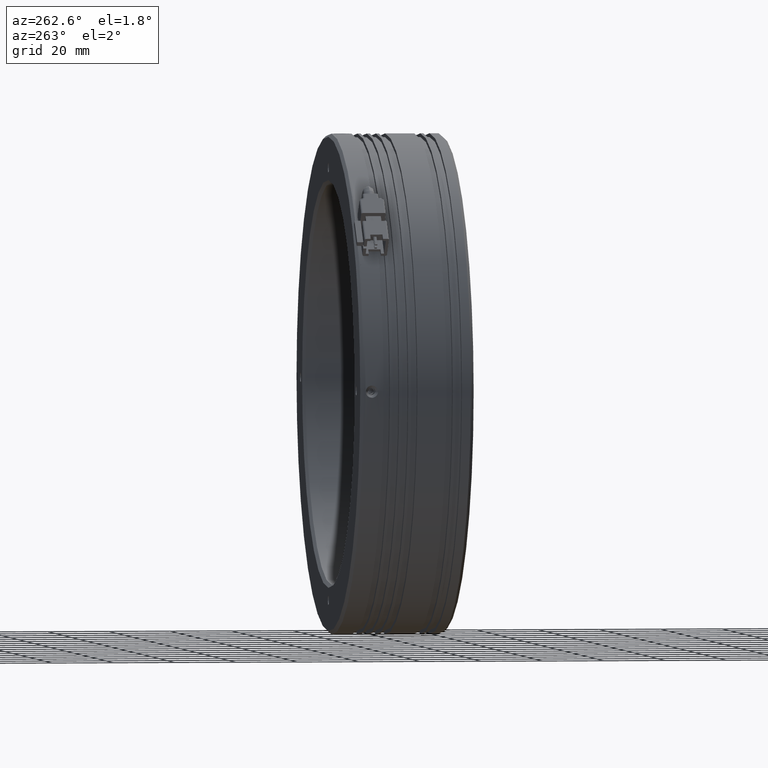
[diagram: clean part render]
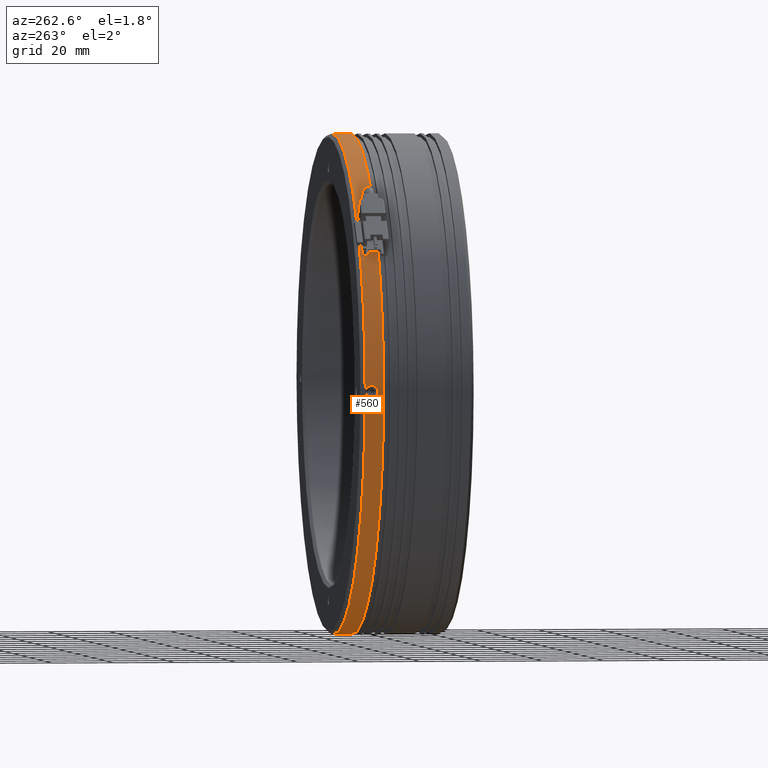
[diagram: same view with one face highlighted and labeled with its STEP entity id]
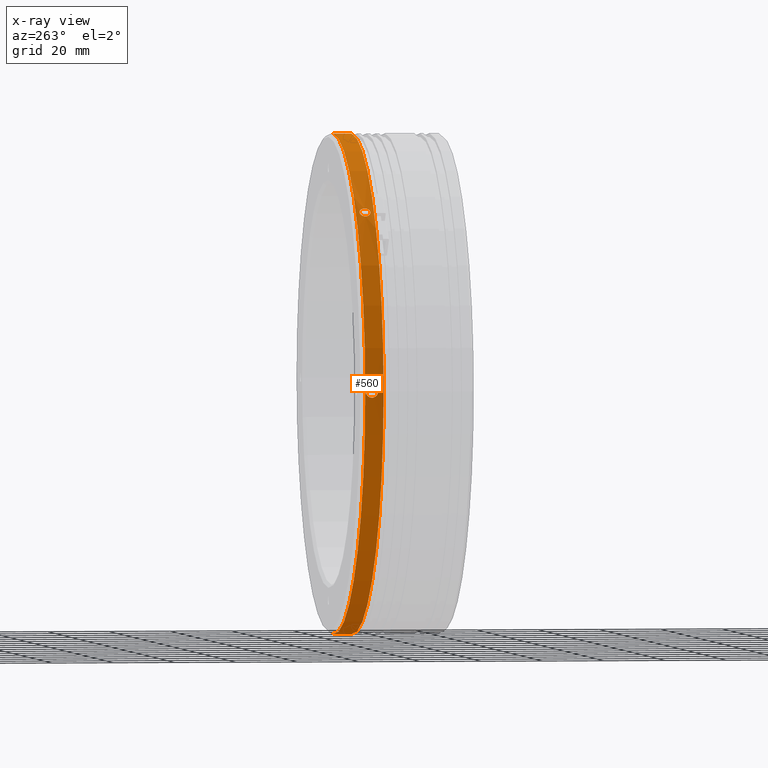
[diagram: x-ray of the same camera — body ghosted, the highlighted face saturated]
A machine part, auxiliary view. The second image highlights one B-rep face of the part: STEP entity #560.
The next image is the same camera in x-ray: the body ghosted, the highlighted face saturated — about 0% of this face is hidden behind the body in this view.
In plain terms, the highlighted cylindrical surface (partial cylindrical patch) has radius 81 mm, axis along (-0, -1, -0).
Its self-contained STEP definition (entity closure, byte-faithful):
#19 = CARTESIAN_POINT ( 'NONE',  ( -90.76091888166118300, 24.17111437184005900, -1.975896614773990000 ) ) ;
#30 = CARTESIAN_POINT ( 'NONE',  ( -9.785022266880036000, -37.73097191106735000, -81.00000000000000000 ) ) ;
#104 = CARTESIAN_POINT ( 'NONE',  ( -9.785022266880025300, -37.73097191106735000, 81.00000000000000000 ) ) ;
#113 = CARTESIAN_POINT ( 'NONE',  ( -9.785022266880036000, 26.37111437184006100, 0.0000000000000000000 ) ) ;
#185 = CARTESIAN_POINT ( 'NONE',  ( -11.76091888159829900, 24.03991468720128600, 80.97589661478173200 ) ) ;
#244 = CARTESIAN_POINT ( 'NONE',  ( -68.24613348243376300, 23.82403630910187400, 56.06513149427852500 ) ) ;
#267 = CARTESIAN_POINT ( 'NONE',  ( -11.69840905936837100, 23.65539804451717000, -80.97740162032246800 ) ) ;
#287 = CARTESIAN_POINT ( 'NONE',  ( -66.66168595529242700, 25.03225265402858900, 57.67197196597156500 ) ) ;
#344 = LINE ( 'NONE', #9531, #2720 ) ;
#365 = B_SPLINE_CURVE_WITH_KNOTS ( 'NONE', 3,
 ( #3219, #9268, #6249, #244, #7277, #1262, #8311, #2261, #9317, #3256, #10348, #4260, #11366, #5284, #12401, #6300, #287, #7319, #1311, #8354, #2300, #9361, #3308, #10383, #4296, #11420, #5327, #12440 ),
 .UNSPECIFIED., .F., .F.,
 ( 4, 2, 2, 2, 2, 2, 2, 2, 2, 2, 2, 2, 2, 4 ),
 ( 0.005470331731803198100, 0.005812227511376099100, 0.006154123290949001100, 0.006496019070521902100, 0.006837914850094803200, 0.007521706409240606200, 0.008205497968386408400, 0.008547393747959295500, 0.008889289527532182700, 0.009231185307105069900, 0.009573081086677955400, 0.009914976866250842600, 0.01025687264582372800, 0.01094066420496948700 ),
 .UNSPECIFIED. ) ;
#368 = CARTESIAN_POINT ( 'NONE',  ( -9.785022266880025300, -37.73097191106735000, 81.00000000000000000 ) ) ;
#439 = CARTESIAN_POINT ( 'NONE',  ( -11.76091888159797900, 24.17111437184005900, 80.97589661478252800 ) ) ;
#460 = FACE_BOUND ( 'NONE', #7204, .T. ) ;
#470 = CIRCLE ( 'NONE', #5397, 81.00000000000000000 ) ;
#491 = CARTESIAN_POINT ( 'NONE',  ( -11.69840905936836800, 24.68683069916289300, 80.97740162032246800 ) ) ;
#560 = ADVANCED_FACE ( 'NONE', ( #5475, #8832, #460 ), #5645, .T. ) ;
#645 = VERTEX_POINT ( 'NONE', #11926 ) ;
#646 = ORIENTED_EDGE ( 'NONE', *, *, #4763, .T. ) ;
#662 = CARTESIAN_POINT ( 'NONE',  ( -65.80986574210211900, 23.25550800685361700, 58.49971720937518400 ) ) ;
#676 = CARTESIAN_POINT ( 'NONE',  ( -90.76242500934590400, 24.68702278896634200, -1.913339547348345000 ) ) ;
#711 = CARTESIAN_POINT ( 'NONE',  ( -66.43467428322166800, 21.84184059962329600, 57.89526110767482700 ) ) ;
#721 = CARTESIAN_POINT ( 'NONE',  ( -90.78470429919205700, 26.15804090762368600, 0.2600949281028596100 ) ) ;
#751 = CARTESIAN_POINT ( 'NONE',  ( -68.12378270852100600, 22.49236556853445600, 56.19246436924800700 ) ) ;
#841 = CARTESIAN_POINT ( 'NONE',  ( -90.76091888166118300, 24.17111437184005900, -1.975896614773990000 ) ) ;
#948 = CARTESIAN_POINT ( 'NONE',  ( -90.76242500934590400, 23.65520595471377900, 1.913339547347780300 ) ) ;
#984 = CARTESIAN_POINT ( 'NONE',  ( -11.51378264215622800, 25.17373191523349600, -80.98160872535589800 ) ) ;
#999 = CARTESIAN_POINT ( 'NONE',  ( -90.78470429919205700, 22.18418783605645600, -0.2600949281034229400 ) ) ;
#1139 = DIRECTION ( 'NONE',  ( 0.0000000000000000000, 0.0000000000000000000, -1.000000000000000000 ) ) ;
#1163 = CARTESIAN_POINT ( 'NONE',  ( -10.30005943013607200, 22.23579664135820600, 80.99846256463132500 ) ) ;
#1175 = VERTEX_POINT ( 'NONE', #2579 ) ;
#1179 = ORIENTED_EDGE ( 'NONE', *, *, #13059, .T. ) ;
#1229 = CARTESIAN_POINT ( 'NONE',  ( -9.785022266880025300, 22.17111437190462900, 81.00000000000000000 ) ) ;
#1262 = CARTESIAN_POINT ( 'NONE',  ( -68.16198427486456500, 24.14707398670231300, 56.15275804229317900 ) ) ;
#1290 = CARTESIAN_POINT ( 'NONE',  ( -11.56274197615486600, 23.28854709550305200, -80.98050449408603400 ) ) ;
#1311 = CARTESIAN_POINT ( 'NONE',  ( -66.43740990886965400, 24.88994155732427100, 57.89227901624811800 ) ) ;
#1390 = VERTEX_POINT ( 'NONE', #1922 ) ;
#1493 = CARTESIAN_POINT ( 'NONE',  ( -11.56274197615484800, 25.05368164817696900, 80.98050449408602000 ) ) ;
#1579 = ORIENTED_EDGE ( 'NONE', *, *, #13126, .T. ) ;
#1671 = CARTESIAN_POINT ( 'NONE',  ( -90.76553000844215500, 25.05399189895766900, -1.777572752244966900 ) ) ;
#1703 = CARTESIAN_POINT ( 'NONE',  ( -66.89844160939364300, 21.62126935751984600, 57.43787447427622100 ) ) ;
#1713 = CARTESIAN_POINT ( 'NONE',  ( -90.78259908924512400, 26.06857078116774000, 0.6380470215244838900 ) ) ;
#1758 = CARTESIAN_POINT ( 'NONE',  ( -68.25321509328020400, 22.91261526924725800, 56.05781093140542000 ) ) ;
#1797 = DIRECTION ( 'NONE',  ( -0.0000000000000000000, -1.000000000000000000, -0.0000000000000000000 ) ) ;
#1914 = CARTESIAN_POINT ( 'NONE',  ( -90.76091888166119800, 24.03985134292058800, 1.975896614773423200 ) ) ;
#1922 = CARTESIAN_POINT ( 'NONE',  ( -9.785022266880036000, 26.37111437184006100, -81.00000000000000000 ) ) ;
#1963 = CARTESIAN_POINT ( 'NONE',  ( -90.76553000844218400, 23.28823684472244100, 1.777572752244399600 ) ) ;
#1985 = CARTESIAN_POINT ( 'NONE',  ( -11.69823321402227000, 24.68757811301155400, -80.97740580261209700 ) ) ;
#1995 = CARTESIAN_POINT ( 'NONE',  ( -90.78259908924509600, 22.27365796251238800, -0.6380470215250447800 ) ) ;
#2077 = CARTESIAN_POINT ( 'NONE',  ( -68.28473947625502700, 23.37111437184005800, 56.02484347522226200 ) ) ;
#2103 = DIRECTION ( 'NONE',  ( 0.0000000000000000000, 1.000000000000000000, 0.0000000000000000000 ) ) ;
#2149 = CARTESIAN_POINT ( 'NONE',  ( -10.66542934419754500, 22.37585717586514300, 80.99530336403316300 ) ) ;
#2176 = CARTESIAN_POINT ( 'NONE',  ( -11.76091888159830200, 24.30232765191509600, 80.97589661478174600 ) ) ;
#2261 = CARTESIAN_POINT ( 'NONE',  ( -68.03654843607475300, 24.43779715719924500, 56.28289021247304900 ) ) ;
#2270 = ORIENTED_EDGE ( 'NONE', *, *, #12778, .T. ) ;
#2282 = CARTESIAN_POINT ( 'NONE',  ( -11.35977316050903100, 22.95610301343656100, -80.98472242458849700 ) ) ;
#2300 = CARTESIAN_POINT ( 'NONE',  ( -66.23830414791547100, 24.69105621296529700, 58.08643253513150700 ) ) ;
#2503 = CARTESIAN_POINT ( 'NONE',  ( -11.35977316050899900, 25.38612573024341400, 80.98472242458846900 ) ) ;
#2579 = CARTESIAN_POINT ( 'NONE',  ( -9.785022266880036000, 20.37111437184005400, -81.00000000000000000 ) ) ;
#2683 = CARTESIAN_POINT ( 'NONE',  ( -90.76975051396347300, 25.38652580681637600, -1.574453847819835600 ) ) ;
#2720 = VECTOR ( 'NONE', #3473, 1000.000000000000000 ) ;
#2729 = CARTESIAN_POINT ( 'NONE',  ( -67.22231753359045600, 21.63237376283833400, 57.11365603371763900 ) ) ;
#2740 = CARTESIAN_POINT ( 'NONE',  ( -90.77607436324562700, 25.76780381010661700, 1.217763909053067200 ) ) ;
#2768 = CARTESIAN_POINT ( 'NONE',  ( -68.28473947625502700, 23.37111437184005800, 56.02484347522226200 ) ) ;
#2792 = EDGE_CURVE ( 'NONE', #645, #4701, #11392, .T. ) ;
#2798 = CARTESIAN_POINT ( 'NONE',  ( -9.785022266880036000, -37.73097191106735000, 0.0000000000000000000 ) ) ;
#2965 = CARTESIAN_POINT ( 'NONE',  ( -90.76975051396350100, 22.95570293686374400, 1.574453847819271100 ) ) ;
#2994 = CARTESIAN_POINT ( 'NONE',  ( -11.76091888159829300, 24.30231405647882100, -80.97589661478173200 ) ) ;
#3010 = CARTESIAN_POINT ( 'NONE',  ( -90.77607436324561300, 22.57442493357350300, -1.217763909053625900 ) ) ;
#3130 = VERTEX_POINT ( 'NONE', #1229 ) ;
#3161 = CARTESIAN_POINT ( 'NONE',  ( -10.99478842550482000, 22.58438865028664100, 80.99103713063409800 ) ) ;
#3219 = CARTESIAN_POINT ( 'NONE',  ( -68.28473947625502700, 23.37111437184005800, 56.02484347522226200 ) ) ;
#3256 = CARTESIAN_POINT ( 'NONE',  ( -67.81656445453262400, 24.77000256405627700, 56.50987682497380100 ) ) ;
#3283 = CARTESIAN_POINT ( 'NONE',  ( -11.00525555266699000, 22.57672452325018900, -80.99101118588654900 ) ) ;
#3308 = CARTESIAN_POINT ( 'NONE',  ( -66.06876800646118400, 24.43930883467826100, 58.25069945741904600 ) ) ;
#3469 = VERTEX_POINT ( 'NONE', #3527 ) ;
#3473 = DIRECTION ( 'NONE',  ( -0.0000000000000000000, -1.000000000000000000, -0.0000000000000000000 ) ) ;
#3501 = CARTESIAN_POINT ( 'NONE',  ( -11.00525555266694300, 25.76550422042968300, 80.99101118588657800 ) ) ;
#3527 = CARTESIAN_POINT ( 'NONE',  ( -11.76091888159797900, 24.17111437184005900, 80.97589661478252800 ) ) ;
#3596 = VERTEX_POINT ( 'NONE', #4715 ) ;
#3653 = ORIENTED_EDGE ( 'NONE', *, *, #3928, .F. ) ;
#3668 = CARTESIAN_POINT ( 'NONE',  ( -65.85015376115841000, 22.91819243457824800, 58.46111121555389900 ) ) ;
#3678 = CARTESIAN_POINT ( 'NONE',  ( -90.77604177709349600, 25.76593914684158900, -1.219698800662305100 ) ) ;
#3711 = CARTESIAN_POINT ( 'NONE',  ( -67.45699423285144300, 21.70997608965153000, 56.87666368841256300 ) ) ;
#3720 = CARTESIAN_POINT ( 'NONE',  ( -90.76977063958274500, 25.38785017570527500, 1.573409932891940600 ) ) ;
#3783 = EDGE_CURVE ( 'NONE', #7719, #11693, #12380, .T. ) ;
#3928 = EDGE_CURVE ( 'NONE', #3130, #12190, #7430, .T. ) ;
#3947 = CARTESIAN_POINT ( 'NONE',  ( -10.30005943013680200, 26.10643210232214900, -80.99846256463133900 ) ) ;
#3960 = CARTESIAN_POINT ( 'NONE',  ( -90.77604177709351100, 22.57628959683851700, 1.219698800661740600 ) ) ;
#3989 = ORIENTED_EDGE ( 'NONE', *, *, #4667, .T. ) ;
#4001 = CARTESIAN_POINT ( 'NONE',  ( -90.76977063958278800, 22.95437856797485000, -1.573409932892501800 ) ) ;
#4004 = EDGE_CURVE ( 'NONE', #3596, #1175, #5875, .T. ) ;
#4095 = EDGE_CURVE ( 'NONE', #1390, #11782, #344, .T. ) ;
#4154 = CARTESIAN_POINT ( 'NONE',  ( -11.36759038296612100, 22.94569786408913400, 80.98474162120780300 ) ) ;
#4175 = B_SPLINE_CURVE_WITH_KNOTS ( 'NONE', 3,
 ( #12728, #11570, #6681, #676, #7698, #1671, #8729, #2683, #9739, #3678, #10774, #4673, #11798, #5714, #12828, #6726, #721, #7761, #1713, #8773, #2740, #9787, #3720, #10828, #4733, #11840, #5754, #12885 ),
 .UNSPECIFIED., .F., .F.,
 ( 4, 2, 2, 2, 2, 2, 2, 2, 2, 2, 2, 2, 2, 4 ),
 ( 0.006234418161735946900, 0.006624064746882057800, 0.007013711332028167700, 0.007403357917174278500, 0.007793004502320388500, 0.008572297672612609300, 0.008961944257758721800, 0.009351590842904834400, 0.009741237428050946900, 0.01013088401319706100, 0.01091017718348927900, 0.01129982376863538800, 0.01168947035378149400, 0.01246876352407370700 ),
 .UNSPECIFIED. ) ;
#4238 = CARTESIAN_POINT ( 'NONE',  ( -11.76091888159829000, 24.03990109176501400, -80.97589661478174600 ) ) ;
#4260 = CARTESIAN_POINT ( 'NONE',  ( -67.38499141912092200, 25.07497349804998900, 56.94987169396735300 ) ) ;
#4278 = CARTESIAN_POINT ( 'NONE',  ( -10.42735741858208200, 22.27524622616451200, -80.99754076703068500 ) ) ;
#4296 = CARTESIAN_POINT ( 'NONE',  ( -65.93798344710529600, 24.14765642876648100, 58.37676665758129200 ) ) ;
#4409 = B_SPLINE_CURVE_WITH_KNOTS ( 'NONE', 3,
 ( #6977, #1914, #4934, #948, #8010, #1963, #9002, #2965, #10040, #3960, #11069, #4972, #12103, #6005, #13123, #7015, #999, #8051, #1995, #9042, #3010, #10073, #4001, #11116, #5015, #12140, #6045, #19 ),
 .UNSPECIFIED., .F., .F.,
 ( 4, 2, 2, 2, 2, 2, 2, 2, 2, 2, 2, 2, 2, 4 ),
 ( 0.0000000000000000000, 0.0003896511351084976600, 0.0007793022702169954300, 0.001168953405325493400, 0.001558604540433991300, 0.002337906810650987600, 0.002727557945759484900, 0.003117209080867982600, 0.003506860215976479900, 0.003896511351084978000, 0.004675813621301973400, 0.005065464756410466800, 0.005455115891518960200, 0.006234418161735946900 ),
 .UNSPECIFIED. ) ;
#4490 = CARTESIAN_POINT ( 'NONE',  ( -10.42735741858203500, 26.06698251751523200, 80.99754076703068500 ) ) ;
#4583 = VECTOR ( 'NONE', #7101, 1000.000000000000000 ) ;
#4592 = B_SPLINE_CURVE_WITH_KNOTS ( 'NONE', 3,
 ( #12255, #5145, #7168, #1163, #8210, #2149, #9211, #3161, #10237, #4154, #11272, #5190, #12293, #6198, #185, #7202 ),
 .UNSPECIFIED., .F., .F.,
 ( 4, 2, 2, 2, 2, 2, 2, 4 ),
 ( -0.003115704793113614700, -0.002726241693974418200, -0.002336778594835222200, -0.001947315495696025700, -0.001557852396556829500, -0.0007789261982784475800, -0.0003894630991392502400, -5.334274688628681800E-017 ),
 .UNSPECIFIED. ) ;
#4663 = CARTESIAN_POINT ( 'NONE',  ( -65.93778030917302100, 22.59515475697780600, 58.37696200798472300 ) ) ;
#4667 = EDGE_CURVE ( 'NONE', #11241, #11726, #4409, .T. ) ;
#4673 = CARTESIAN_POINT ( 'NONE',  ( -90.78257013278369000, 26.06729235918344800, -0.6414522752959377300 ) ) ;
#4701 = VERTEX_POINT ( 'NONE', #2077 ) ;
#4715 = CARTESIAN_POINT ( 'NONE',  ( -9.785022266880036000, 22.17111437190406400, -81.00000000000000000 ) ) ;
#4721 = CARTESIAN_POINT ( 'NONE',  ( -67.67730128312800300, 21.85228718635584500, 56.65238764198980400 ) ) ;
#4733 = CARTESIAN_POINT ( 'NONE',  ( -90.76552902182068300, 25.05390210742425300, 1.777617709899451900 ) ) ;
#4763 = EDGE_CURVE ( 'NONE', #3130, #3469, #4592, .T. ) ;
#4836 = EDGE_CURVE ( 'NONE', #5348, #3596, #11658, .T. ) ;
#4904 = ORIENTED_EDGE ( 'NONE', *, *, #12593, .T. ) ;
#4934 = CARTESIAN_POINT ( 'NONE',  ( -90.76123031354052300, 23.91043672961241000, 1.963250753959727300 ) ) ;
#4964 = CARTESIAN_POINT ( 'NONE',  ( -10.66542934419814300, 25.96637156781503800, -80.99530336403316300 ) ) ;
#4972 = CARTESIAN_POINT ( 'NONE',  ( -90.78257013278371800, 22.27493638449668000, 0.6414522752953697400 ) ) ;
#5015 = CARTESIAN_POINT ( 'NONE',  ( -90.76552902182066900, 23.28832663625585300, -1.777617709900015200 ) ) ;
#5145 = CARTESIAN_POINT ( 'NONE',  ( -9.916265321284420500, 22.17111437190102700, 80.99999999999128900 ) ) ;
#5190 = CARTESIAN_POINT ( 'NONE',  ( -11.66044029277813000, 23.52826793746680400, 80.97830078652911800 ) ) ;
#5284 = CARTESIAN_POINT ( 'NONE',  ( -66.98081609141613100, 25.12119126260634900, 57.35550707700431200 ) ) ;
#5303 = CARTESIAN_POINT ( 'NONE',  ( -10.04583316528009200, 22.18422494589111300, -80.99968105721905000 ) ) ;
#5327 = CARTESIAN_POINT ( 'NONE',  ( -65.80986574210213300, 23.60232713314788500, 58.49971720937519100 ) ) ;
#5333 = ORIENTED_EDGE ( 'NONE', *, *, #4095, .T. ) ;
#5348 = VERTEX_POINT ( 'NONE', #9825 ) ;
#5397 = AXIS2_PLACEMENT_3D ( 'NONE', #113, #7148, #1139 ) ;
#5475 = FACE_OUTER_BOUND ( 'NONE', #12684, .T. ) ;
#5528 = CARTESIAN_POINT ( 'NONE',  ( -10.04583316528005500, 26.15800379778851000, 80.99968105721905000 ) ) ;
#5645 = CYLINDRICAL_SURFACE ( 'NONE', #8141, 81.00000000000000000 ) ;
#5705 = CARTESIAN_POINT ( 'NONE',  ( -66.06791247935294100, 22.30443158648087700, 58.25152616919488200 ) ) ;
#5714 = CARTESIAN_POINT ( 'NONE',  ( -90.78470496005374500, 26.15807067305441800, -0.2601789741003270900 ) ) ;
#5743 = CARTESIAN_POINT ( 'NONE',  ( -67.87145480201138500, 22.05117253071482600, 56.45328188103559300 ) ) ;
#5754 = CARTESIAN_POINT ( 'NONE',  ( -90.76091888166122600, 24.43363736415812000, 1.975896614773426300 ) ) ;
#5875 = LINE ( 'NONE', #30, #11255 ) ;
#5909 = B_SPLINE_CURVE_WITH_KNOTS ( 'NONE', 3,
 ( #11018, #9984, #10028, #3947, #11054, #4964, #12090, #5987, #13111, #7000, #984, #8036, #1985, #9032, #2994, #10061 ),
 .UNSPECIFIED., .F., .F.,
 ( 4, 2, 2, 2, 2, 2, 2, 4 ),
 ( -0.003115704793113053900, -0.002726241693973927300, -0.002336778594834800600, -0.001947315495695674200, -0.001557852396556547600, -0.0007789261982782949200, -0.0003894630991391687100, -4.250072516143177400E-017 ),
 .UNSPECIFIED. ) ;
#5935 = ORIENTED_EDGE ( 'NONE', *, *, #4836, .T. ) ;
#5987 = CARTESIAN_POINT ( 'NONE',  ( -10.99478842550526500, 25.75784009339343000, -80.99103713063414000 ) ) ;
#6005 = CARTESIAN_POINT ( 'NONE',  ( -90.78470496005375900, 22.18415807062569200, 0.2601789740997606500 ) ) ;
#6045 = CARTESIAN_POINT ( 'NONE',  ( -90.76091888166118300, 23.90858524844445700, -1.975896614773986900 ) ) ;
#6057 = EDGE_LOOP ( 'NONE', ( #3989, #8089 ) ) ;
#6198 = CARTESIAN_POINT ( 'NONE',  ( -11.74828480183142300, 23.91039491477685900, 80.97620778270635400 ) ) ;
#6249 = CARTESIAN_POINT ( 'NONE',  ( -68.27689369448066300, 23.60039474418871900, 56.03303910127596100 ) ) ;
#6280 = CARTESIAN_POINT ( 'NONE',  ( -11.74828251409446100, 23.91053483967898400, -80.97620781067968200 ) ) ;
#6300 = CARTESIAN_POINT ( 'NONE',  ( -66.73930990203804500, 25.06525847209005800, 57.59532718081192800 ) ) ;
#6326 = CARTESIAN_POINT ( 'NONE',  ( -9.785022266880036000, 22.17111437190406400, -81.00000000000000000 ) ) ;
#6498 = CARTESIAN_POINT ( 'NONE',  ( -11.74828251409446100, 24.43169390400110400, 80.97620781067966800 ) ) ;
#6528 = CARTESIAN_POINT ( 'NONE',  ( -9.785022266880025300, 26.37111437184006100, 81.00000000000000000 ) ) ;
#6541 = CARTESIAN_POINT ( 'NONE',  ( -9.785022266880025300, 26.17111437177548800, 81.00000000000000000 ) ) ;
#6681 = CARTESIAN_POINT ( 'NONE',  ( -90.76123031354050900, 24.43179201406771400, -1.963250753960293200 ) ) ;
#6715 = CARTESIAN_POINT ( 'NONE',  ( -66.29489909185367900, 21.97222617962384900, 58.03154218765274700 ) ) ;
#6726 = CARTESIAN_POINT ( 'NONE',  ( -90.78502462489535700, 26.17121222949551300, 0.1284434222430155300 ) ) ;
#6760 = CARTESIAN_POINT ( 'NONE',  ( -68.03572172429892400, 22.30291990900185400, 56.28374573958130600 ) ) ;
#6911 = B_SPLINE_CURVE_WITH_KNOTS ( 'NONE', 3,
 ( #439, #2176, #6498, #491, #7512, #1493, #8544, #2503, #9549, #3501, #10593, #4490, #11614, #5528, #12628, #6541 ),
 .UNSPECIFIED., .F., .F.,
 ( 4, 2, 2, 2, 2, 2, 2, 4 ),
 ( -5.345116710353536900E-017, 0.0003895034568637189200, 0.0007790069137274913000, 0.001168510370591263600, 0.001558013827455035900, 0.002337020741182591800, 0.002726524198046367200, 0.003116027654910143000 ),
 .UNSPECIFIED. ) ;
#6977 = CARTESIAN_POINT ( 'NONE',  ( -90.76091888166119800, 24.17111437184005100, 1.975896614773424000 ) ) ;
#7000 = CARTESIAN_POINT ( 'NONE',  ( -11.36759038296635500, 25.39653087959083800, -80.98474162120781700 ) ) ;
#7015 = CARTESIAN_POINT ( 'NONE',  ( -90.78502462489537100, 22.17101651418460800, -0.1284434222435773500 ) ) ;
#7059 = DIRECTION ( 'NONE',  ( -0.0000000000000000000, -1.000000000000000000, -0.0000000000000000000 ) ) ;
#7101 = DIRECTION ( 'NONE',  ( -0.0000000000000000000, -1.000000000000000000, -0.0000000000000000000 ) ) ;
#7148 = DIRECTION ( 'NONE',  ( -0.0000000000000000000, -1.000000000000000000, -0.0000000000000000000 ) ) ;
#7168 = CARTESIAN_POINT ( 'NONE',  ( -10.04549515732402700, 22.18422127905033000, 80.99968120299524800 ) ) ;
#7202 = CARTESIAN_POINT ( 'NONE',  ( -11.76091888159797900, 24.17111437184005900, 80.97589661478252800 ) ) ;
#7204 = EDGE_LOOP ( 'NONE', ( #10142, #1579 ) ) ;
#7277 = CARTESIAN_POINT ( 'NONE',  ( -68.22284560593961100, 23.93516178936317800, 56.08941729444918400 ) ) ;
#7301 = CARTESIAN_POINT ( 'NONE',  ( -11.66060439339640100, 23.52872424871768700, -80.97829701326227800 ) ) ;
#7319 = CARTESIAN_POINT ( 'NONE',  ( -66.51063661023820800, 24.94470801124568400, 57.82054911653097700 ) ) ;
#7396 = DIRECTION ( 'NONE',  ( -0.0000000000000000000, -1.000000000000000000, -0.0000000000000000000 ) ) ;
#7430 = LINE ( 'NONE', #368, #9839 ) ;
#7512 = CARTESIAN_POINT ( 'NONE',  ( -11.66060439339639000, 24.81350449496235900, 80.97829701326227800 ) ) ;
#7556 = ORIENTED_EDGE ( 'NONE', *, *, #3783, .F. ) ;
#7698 = CARTESIAN_POINT ( 'NONE',  ( -90.76332105511654900, 24.81374059659415800, -1.875506420629359200 ) ) ;
#7719 = VERTEX_POINT ( 'NONE', #6528 ) ;
#7747 = CARTESIAN_POINT ( 'NONE',  ( -66.73489396084723100, 21.66725524563013400, 57.59996915224105200 ) ) ;
#7761 = CARTESIAN_POINT ( 'NONE',  ( -90.78348996542590000, 26.10665102794072800, 0.5141684499229808300 ) ) ;
#7804 = CARTESIAN_POINT ( 'NONE',  ( -68.16178892446116300, 22.59457231491363800, 56.15296118022543200 ) ) ;
#7892 = ORIENTED_EDGE ( 'NONE', *, *, #12648, .T. ) ;
#8010 = CARTESIAN_POINT ( 'NONE',  ( -90.76332105511657700, 23.52848814708596600, 1.875506420628791000 ) ) ;
#8036 = CARTESIAN_POINT ( 'NONE',  ( -11.66044029277819000, 24.81396080621321000, -80.97830078652913200 ) ) ;
#8051 = CARTESIAN_POINT ( 'NONE',  ( -90.78348996542587200, 22.23557771573940700, -0.5141684499235407200 ) ) ;
#8089 = ORIENTED_EDGE ( 'NONE', *, *, #12874, .T. ) ;
#8141 = AXIS2_PLACEMENT_3D ( 'NONE', #2798, #1797, #8886 ) ;
#8157 = CARTESIAN_POINT ( 'NONE',  ( -9.785022266880036000, 20.37111437184005400, 0.0000000000000000000 ) ) ;
#8210 = CARTESIAN_POINT ( 'NONE',  ( -10.42641141089481300, 22.27489432019287100, 80.99754875068434500 ) ) ;
#8311 = CARTESIAN_POINT ( 'NONE',  ( -68.12471689149511200, 24.24758126095386900, 56.19149457717185900 ) ) ;
#8329 = CARTESIAN_POINT ( 'NONE',  ( -11.50266410359491300, 23.17397939529810500, -80.98181779316512100 ) ) ;
#8354 = CARTESIAN_POINT ( 'NONE',  ( -66.30168217851648600, 24.76333365649894000, 58.02478907902907000 ) ) ;
#8544 = CARTESIAN_POINT ( 'NONE',  ( -11.50266410359489600, 25.16824934838189900, 80.98181779316512100 ) ) ;
#8703 = CARTESIAN_POINT ( 'NONE',  ( -9.785022266880025300, 20.37111437184005400, 81.00000000000000000 ) ) ;
#8719 = CARTESIAN_POINT ( 'NONE',  ( -65.80986574210211900, 23.37111437184005800, 58.49971720937517000 ) ) ;
#8729 = CARTESIAN_POINT ( 'NONE',  ( -90.76684415010947800, 25.16859268814437600, -1.717451206225377900 ) ) ;
#8763 = CARTESIAN_POINT ( 'NONE',  ( -67.14052934388418200, 21.62103748107377000, 57.19579382453622400 ) ) ;
#8773 = CARTESIAN_POINT ( 'NONE',  ( -90.77920904016119200, 25.91621558049029500, 0.9999646600186717900 ) ) ;
#8804 = CARTESIAN_POINT ( 'NONE',  ( -68.28473947625505500, 23.13990167320212500, 56.02484347522227600 ) ) ;
#8832 = FACE_BOUND ( 'NONE', #6057, .T. ) ;
#8886 = DIRECTION ( 'NONE',  ( 0.0000000000000000000, 0.0000000000000000000, -1.000000000000000000 ) ) ;
#9002 = CARTESIAN_POINT ( 'NONE',  ( -90.76684415010952000, 23.17363605553573400, 1.717451206224811500 ) ) ;
#9032 = CARTESIAN_POINT ( 'NONE',  ( -11.74828480183142800, 24.43183382890321900, -80.97620778270633900 ) ) ;
#9042 = CARTESIAN_POINT ( 'NONE',  ( -90.77920904016116300, 22.42601316318984000, -0.9999646600192290100 ) ) ;
#9149 = DIRECTION ( 'NONE',  ( 0.0000000000000000000, 0.0000000000000000000, -1.000000000000000000 ) ) ;
#9211 = CARTESIAN_POINT ( 'NONE',  ( -10.77912663496866400, 22.43771255758580500, 80.99397129515043000 ) ) ;
#9259 = ORIENTED_EDGE ( 'NONE', *, *, #4004, .T. ) ;
#9268 = CARTESIAN_POINT ( 'NONE',  ( -68.28473947625504100, 23.48672073682649500, 56.02484347522228300 ) ) ;
#9313 = AXIS2_PLACEMENT_3D ( 'NONE', #8157, #2103, #9149 ) ;
#9317 = CARTESIAN_POINT ( 'NONE',  ( -67.98517637492740600, 24.52785802873345800, 56.33603268479502900 ) ) ;
#9343 = CARTESIAN_POINT ( 'NONE',  ( -11.27713379560808000, 22.85363691735539900, -80.98630636553244200 ) ) ;
#9361 = CARTESIAN_POINT ( 'NONE',  ( -66.12096941639710200, 24.52785385864800500, 58.20023830333379800 ) ) ;
#9531 = CARTESIAN_POINT ( 'NONE',  ( -9.785022266880036000, -37.73097191106735000, -81.00000000000000000 ) ) ;
#9549 = CARTESIAN_POINT ( 'NONE',  ( -11.27713379560804300, 25.48859182632454800, 80.98630636553242800 ) ) ;
#9728 = CARTESIAN_POINT ( 'NONE',  ( -65.81806136815582400, 23.14183399949140000, 58.49187142760079200 ) ) ;
#9739 = CARTESIAN_POINT ( 'NONE',  ( -90.77133517309874800, 25.48900420890289100, -1.491760192881963500 ) ) ;
#9774 = CARTESIAN_POINT ( 'NONE',  ( -67.38034944769179900, 21.67697027159006500, 56.95428763515818100 ) ) ;
#9787 = CARTESIAN_POINT ( 'NONE',  ( -90.77132905643823300, 25.48867056933859500, 1.492139316940931400 ) ) ;
#9825 = CARTESIAN_POINT ( 'NONE',  ( -11.76091888159797900, 24.17111437184005900, -80.97589661478252800 ) ) ;
#9839 = VECTOR ( 'NONE', #7396, 1000.000000000000000 ) ;
#9877 = CARTESIAN_POINT ( 'NONE',  ( -9.785022266880025300, 26.17111437177548800, 81.00000000000000000 ) ) ;
#9984 = CARTESIAN_POINT ( 'NONE',  ( -9.916265321284379700, 26.17111437177898400, -80.99999999999283800 ) ) ;
#10028 = CARTESIAN_POINT ( 'NONE',  ( -10.04549515732486500, 26.15800746463016000, -80.99968120299523400 ) ) ;
#10040 = CARTESIAN_POINT ( 'NONE',  ( -90.77133517309873400, 22.85322453477722600, 1.491760192881395300 ) ) ;
#10061 = CARTESIAN_POINT ( 'NONE',  ( -11.76091888159797900, 24.17111437184005900, -80.97589661478252800 ) ) ;
#10073 = CARTESIAN_POINT ( 'NONE',  ( -90.77132905643824800, 22.85355817434152900, -1.492139316941491400 ) ) ;
#10142 = ORIENTED_EDGE ( 'NONE', *, *, #2792, .T. ) ;
#10237 = CARTESIAN_POINT ( 'NONE',  ( -11.09556691876953000, 22.66874346650442400, 80.98944805985138400 ) ) ;
#10348 = CARTESIAN_POINT ( 'NONE',  ( -67.68028337455469100, 24.90038814405682600, 56.64965201634181800 ) ) ;
#10366 = CARTESIAN_POINT ( 'NONE',  ( -10.78489271142357200, 22.42641510122814800, -80.99417928536448100 ) ) ;
#10383 = CARTESIAN_POINT ( 'NONE',  ( -65.97748663612787800, 24.24986317514565900, 58.33876044164112100 ) ) ;
#10593 = CARTESIAN_POINT ( 'NONE',  ( -10.78489271142352700, 25.91581364245169500, 80.99417928536452400 ) ) ;
#10763 = CARTESIAN_POINT ( 'NONE',  ( -65.87443956132904100, 22.80706695431693400, 58.43782333905974700 ) ) ;
#10774 = CARTESIAN_POINT ( 'NONE',  ( -90.77921028537036800, 25.91622508544903200, -0.9991959111168009500 ) ) ;
#10816 = CARTESIAN_POINT ( 'NONE',  ( -67.60557138341087600, 21.79752073243442500, 56.72561434335835900 ) ) ;
#10828 = CARTESIAN_POINT ( 'NONE',  ( -90.76687394077605100, 25.17100812304284600, 1.716038249577856100 ) ) ;
#10909 = CIRCLE ( 'NONE', #9313, 81.00000000000000000 ) ;
#11018 = CARTESIAN_POINT ( 'NONE',  ( -9.785022266880036000, 26.17111437177605300, -81.00000000000000000 ) ) ;
#11054 = CARTESIAN_POINT ( 'NONE',  ( -10.42641141089550200, 26.06733442348742000, -80.99754875068435900 ) ) ;
#11069 = CARTESIAN_POINT ( 'NONE',  ( -90.77921028537036800, 22.42600365823108900, 0.9991959111162287400 ) ) ;
#11116 = CARTESIAN_POINT ( 'NONE',  ( -90.76687394077598000, 23.17122062063727500, -1.716038249578416600 ) ) ;
#11241 = VERTEX_POINT ( 'NONE', #11679 ) ;
#11255 = VECTOR ( 'NONE', #7059, 1000.000000000000000 ) ;
#11272 = CARTESIAN_POINT ( 'NONE',  ( -11.51378264215607700, 23.16849682844647900, 80.98160872535589800 ) ) ;
#11346 = CARTESIAN_POINT ( 'NONE',  ( -11.76091888159797900, 24.17111437184005900, -80.97589661478252800 ) ) ;
#11366 = CARTESIAN_POINT ( 'NONE',  ( -67.22289674115607700, 25.12095938616026900, 57.11341934251377200 ) ) ;
#11392 = B_SPLINE_CURVE_WITH_KNOTS ( 'NONE', 3,
 ( #8719, #662, #9728, #3668, #10763, #4663, #11787, #5705, #12811, #6715, #711, #7747, #1703, #8763, #2729, #9774, #3711, #10816, #4721, #11830, #5743, #12871, #6760, #751, #7804, #1758, #8804, #2768 ),
 .UNSPECIFIED., .F., .F.,
 ( 4, 2, 2, 2, 2, 2, 2, 2, 2, 2, 2, 2, 2, 4 ),
 ( 0.0000000000000000000, 0.0003418957332377055200, 0.0006837914664754110300, 0.001025687199713116400, 0.001367582932950822100, 0.002051374399426229400, 0.002735165865901636800, 0.003077061599139333100, 0.003418957332377029400, 0.003760853065614726100, 0.004102748798852422400, 0.004444644532090118700, 0.004786540265327815000, 0.005470331731803198100 ),
 .UNSPECIFIED. ) ;
#11397 = CARTESIAN_POINT ( 'NONE',  ( -10.30159336043156600, 22.23617271002066800, -80.99845373833530000 ) ) ;
#11420 = CARTESIAN_POINT ( 'NONE',  ( -65.84283319828527700, 23.82961347443286500, 58.46819282640033300 ) ) ;
#11570 = CARTESIAN_POINT ( 'NONE',  ( -90.76091888166116900, 24.30237740075952100, -1.975896614773986500 ) ) ;
#11614 = CARTESIAN_POINT ( 'NONE',  ( -10.30159336043150900, 26.10605603365903300, 80.99845373833528600 ) ) ;
#11658 = B_SPLINE_CURVE_WITH_KNOTS ( 'NONE', 3,
 ( #11346, #4238, #6280, #267, #7301, #1290, #8329, #2282, #9343, #3283, #10366, #4278, #11397, #5303, #12424, #6326 ),
 .UNSPECIFIED., .F., .F.,
 ( 4, 2, 2, 2, 2, 2, 2, 4 ),
 ( -4.228388472693467300E-017, 0.0003895034568637693900, 0.0007790069137275810700, 0.001168510370591392900, 0.001558013827455204400, 0.002337020741182831700, 0.002726524198046644300, 0.003116027654910457800 ),
 .UNSPECIFIED. ) ;
#11679 = CARTESIAN_POINT ( 'NONE',  ( -90.76091888166119800, 24.17111437184005100, 1.975896614773424000 ) ) ;
#11693 = VERTEX_POINT ( 'NONE', #9877 ) ;
#11726 = VERTEX_POINT ( 'NONE', #841 ) ;
#11782 = VERTEX_POINT ( 'NONE', #12069 ) ;
#11787 = CARTESIAN_POINT ( 'NONE',  ( -65.97651684405173000, 22.49464748272625800, 58.33969462461521300 ) ) ;
#11798 = CARTESIAN_POINT ( 'NONE',  ( -90.78348283592723100, 26.10634750411608700, -0.5154366478031747700 ) ) ;
#11830 = CARTESIAN_POINT ( 'NONE',  ( -67.80981134590892600, 21.97889508718118300, 56.51665991163660200 ) ) ;
#11840 = CARTESIAN_POINT ( 'NONE',  ( -90.76221548276473100, 24.69346071938113600, 1.924519398542065700 ) ) ;
#11926 = CARTESIAN_POINT ( 'NONE',  ( -65.80986574210211900, 23.37111437184005800, 58.49971720937517000 ) ) ;
#12069 = CARTESIAN_POINT ( 'NONE',  ( -9.785022266880036000, 26.17111437177605300, -81.00000000000000000 ) ) ;
#12090 = CARTESIAN_POINT ( 'NONE',  ( -10.77912663496921300, 25.90451618609432300, -80.99397129515043000 ) ) ;
#12103 = CARTESIAN_POINT ( 'NONE',  ( -90.78348283592725900, 22.23588123956404800, 0.5154366478026054500 ) ) ;
#12140 = CARTESIAN_POINT ( 'NONE',  ( -90.76221548276473100, 23.64876802429898800, -1.924519398542629400 ) ) ;
#12190 = VERTEX_POINT ( 'NONE', #8703 ) ;
#12255 = CARTESIAN_POINT ( 'NONE',  ( -9.785022266880025300, 22.17111437190462900, 81.00000000000000000 ) ) ;
#12293 = CARTESIAN_POINT ( 'NONE',  ( -11.69823321402223100, 23.65465063066849500, 80.97740580261206800 ) ) ;
#12380 = LINE ( 'NONE', #104, #4583 ) ;
#12401 = CARTESIAN_POINT ( 'NONE',  ( -66.89867830059749600, 25.10985498084178500, 57.43729526671056400 ) ) ;
#12424 = CARTESIAN_POINT ( 'NONE',  ( -9.916280237717629100, 22.17111437190405000, -81.00000000000004300 ) ) ;
#12440 = CARTESIAN_POINT ( 'NONE',  ( -65.80986574210211900, 23.37111437184005800, 58.49971720937517000 ) ) ;
#12593 = EDGE_CURVE ( 'NONE', #11782, #5348, #5909, .T. ) ;
#12628 = CARTESIAN_POINT ( 'NONE',  ( -9.916280237717431900, 26.17111437177555200, 80.99999999999998600 ) ) ;
#12648 = EDGE_CURVE ( 'NONE', #1175, #12190, #10909, .T. ) ;
#12684 = EDGE_LOOP ( 'NONE', ( #7556, #1179, #5333, #4904, #5935, #9259, #7892, #3653, #646, #2270 ) ) ;
#12728 = CARTESIAN_POINT ( 'NONE',  ( -90.76091888166118300, 24.17111437184005900, -1.975896614773990000 ) ) ;
#12778 = EDGE_CURVE ( 'NONE', #3469, #11693, #6911, .T. ) ;
#12811 = CARTESIAN_POINT ( 'NONE',  ( -66.12105495167492100, 22.21437071494665000, 58.20015410804751400 ) ) ;
#12828 = CARTESIAN_POINT ( 'NONE',  ( -90.78501988187680600, 26.17101539417024700, -0.1314004631808426400 ) ) ;
#12871 = CARTESIAN_POINT ( 'NONE',  ( -67.98526057021365400, 22.21437488503211500, 56.33594714951724600 ) ) ;
#12874 = EDGE_CURVE ( 'NONE', #11726, #11241, #4175, .T. ) ;
#12885 = CARTESIAN_POINT ( 'NONE',  ( -90.76091888166119800, 24.17111437184005100, 1.975896614773424000 ) ) ;
#13059 = EDGE_CURVE ( 'NONE', #7719, #1390, #470, .T. ) ;
#13111 = CARTESIAN_POINT ( 'NONE',  ( -11.09556691876991200, 25.67348527717560100, -80.98944805985139800 ) ) ;
#13123 = CARTESIAN_POINT ( 'NONE',  ( -90.78501988187680600, 22.17121334950987300, 0.1314004631802773400 ) ) ;
#13126 = EDGE_CURVE ( 'NONE', #4701, #645, #365, .T. ) ;